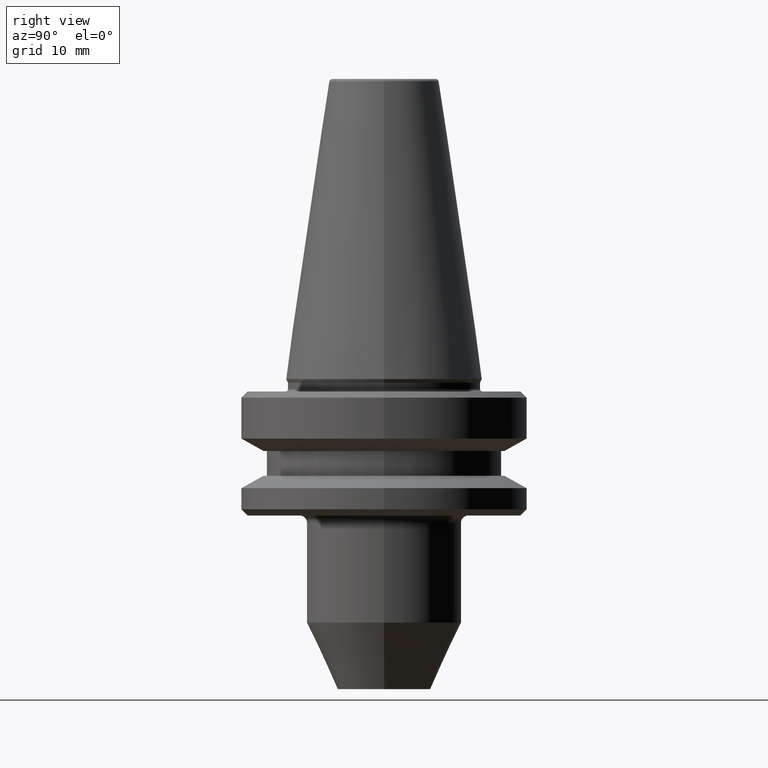
[diagram: clean part render]
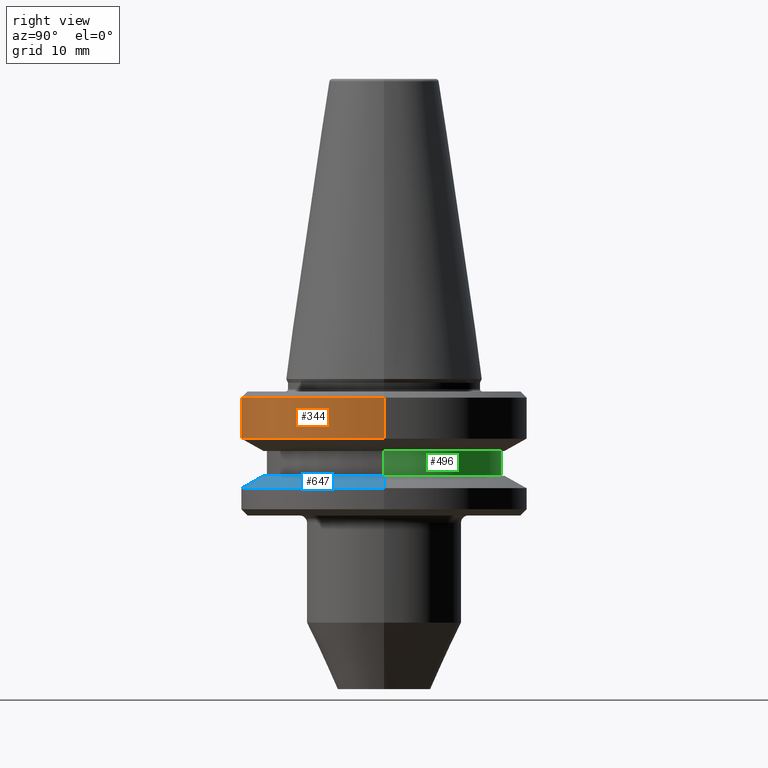
[diagram: same view with three faces highlighted in distinct colors, each labeled with its STEP entity id]
A machine part, right view with three faces highlighted in distinct colors.
Their STEP definitions:

[orange] entity #344 — the highlighted cylindrical surface (partial cylindrical patch) has radius 23 mm, axis along (-0, -0, 1).
#73 = VERTEX_POINT ( 'NONE', #218 ) ;
#78 = CYLINDRICAL_SURFACE ( 'NONE', #789, 22.99999999999990800 ) ;
#81 = CIRCLE ( 'NONE', #309, 22.99999999999990800 ) ;
#85 = DIRECTION ( 'NONE',  ( -0.0000000000000000000, -0.0000000000000000000, 1.000000000000000000 ) ) ;
#91 = CARTESIAN_POINT ( 'NONE',  ( 22.99999999999990800, 0.0000000000000000000, -9.600117335054614300 ) ) ;
#139 = EDGE_CURVE ( 'NONE', #914, #73, #325, .T. ) ;
#141 = ORIENTED_EDGE ( 'NONE', *, *, #881, .F. ) ;
#168 = CARTESIAN_POINT ( 'NONE',  ( 0.0000000000000000000, 0.0000000000000000000, -9.600117335054614300 ) ) ;
#218 = CARTESIAN_POINT ( 'NONE',  ( 22.99999999999990800, 0.0000000000000000000, -3.000000000000113700 ) ) ;
#246 = DIRECTION ( 'NONE',  ( 1.000000000000000000, 0.0000000000000000000, 0.0000000000000000000 ) ) ;
#309 = AXIS2_PLACEMENT_3D ( 'NONE', #168, #701, #246 ) ;
#320 = CARTESIAN_POINT ( 'NONE',  ( 22.99999999999990800, 0.0000000000000000000, 67.86440920015635900 ) ) ;
#325 = CIRCLE ( 'NONE', #812, 22.99999999999990800 ) ;
#344 = ADVANCED_FACE ( 'NONE', ( #921 ), #78, .T. ) ;
#382 = DIRECTION ( 'NONE',  ( -0.0000000000000000000, -0.0000000000000000000, 1.000000000000000000 ) ) ;
#389 = DIRECTION ( 'NONE',  ( 1.000000000000000000, 0.0000000000000000000, 0.0000000000000000000 ) ) ;
#394 = EDGE_LOOP ( 'NONE', ( #141, #587, #549, #408 ) ) ;
#408 = ORIENTED_EDGE ( 'NONE', *, *, #139, .F. ) ;
#459 = DIRECTION ( 'NONE',  ( -0.0000000000000000000, -0.0000000000000000000, 1.000000000000000000 ) ) ;
#549 = ORIENTED_EDGE ( 'NONE', *, *, #968, .T. ) ;
#565 = VERTEX_POINT ( 'NONE', #903 ) ;
#587 = ORIENTED_EDGE ( 'NONE', *, *, #934, .T. ) ;
#611 = LINE ( 'NONE', #320, #826 ) ;
#621 = CARTESIAN_POINT ( 'NONE',  ( -22.99999999999990800, 2.816687638038901300E-015, -3.000000000000113700 ) ) ;
#701 = DIRECTION ( 'NONE',  ( -0.0000000000000000000, -0.0000000000000000000, 1.000000000000000000 ) ) ;
#714 = VECTOR ( 'NONE', #459, 1000.000000000000000 ) ;
#737 = LINE ( 'NONE', #848, #714 ) ;
#771 = CARTESIAN_POINT ( 'NONE',  ( 0.0000000000000000000, 0.0000000000000000000, 67.86440920015635900 ) ) ;
#786 = DIRECTION ( 'NONE',  ( -0.0000000000000000000, -0.0000000000000000000, 1.000000000000000000 ) ) ;
#789 = AXIS2_PLACEMENT_3D ( 'NONE', #771, #382, #389 ) ;
#812 = AXIS2_PLACEMENT_3D ( 'NONE', #860, #85, #970 ) ;
#826 = VECTOR ( 'NONE', #786, 1000.000000000000000 ) ;
#848 = CARTESIAN_POINT ( 'NONE',  ( -22.99999999999990800, 2.816687638038901300E-015, 67.86440920015635900 ) ) ;
#860 = CARTESIAN_POINT ( 'NONE',  ( 0.0000000000000000000, 0.0000000000000000000, -3.000000000000113700 ) ) ;
#881 = EDGE_CURVE ( 'NONE', #565, #914, #737, .T. ) ;
#903 = CARTESIAN_POINT ( 'NONE',  ( -22.99999999999990800, 2.816687638038901300E-015, -9.600117335054614300 ) ) ;
#914 = VERTEX_POINT ( 'NONE', #621 ) ;
#921 = FACE_OUTER_BOUND ( 'NONE', #394, .T. ) ;
#923 = VERTEX_POINT ( 'NONE', #91 ) ;
#934 = EDGE_CURVE ( 'NONE', #565, #923, #81, .T. ) ;
#968 = EDGE_CURVE ( 'NONE', #923, #73, #611, .T. ) ;
#970 = DIRECTION ( 'NONE',  ( 1.000000000000000000, 0.0000000000000000000, 0.0000000000000000000 ) ) ;

[blue] entity #647 — the highlighted conical surface has half-angle 60 deg.
#5 = CARTESIAN_POINT ( 'NONE',  ( 19.53610161513741200, 2.604585034559224100E-015, -15.59999999999983600 ) ) ;
#7 = EDGE_CURVE ( 'NONE', #859, #751, #630, .T. ) ;
#27 = VECTOR ( 'NONE', #485, 1000.000000000000000 ) ;
#42 = EDGE_CURVE ( 'NONE', #648, #859, #604, .T. ) ;
#44 = CARTESIAN_POINT ( 'NONE',  ( -19.53610161513741200, 0.0000000000000000000, -15.59999999999983600 ) ) ;
#70 = VECTOR ( 'NONE', #449, 1000.000000000000000 ) ;
#79 = CARTESIAN_POINT ( 'NONE',  ( -22.99999999999990800, 2.816687638038901700E-015, -17.59988266494572100 ) ) ;
#94 = DIRECTION ( 'NONE',  ( -0.0000000000000000000, -0.0000000000000000000, 1.000000000000000000 ) ) ;
#118 = LINE ( 'NONE', #829, #70 ) ;
#119 = ORIENTED_EDGE ( 'NONE', *, *, #42, .T. ) ;
#170 = AXIS2_PLACEMENT_3D ( 'NONE', #548, #715, #612 ) ;
#192 = AXIS2_PLACEMENT_3D ( 'NONE', #628, #94, #926 ) ;
#211 = EDGE_CURVE ( 'NONE', #648, #852, #595, .T. ) ;
#311 = FACE_OUTER_BOUND ( 'NONE', #993, .T. ) ;
#334 = ORIENTED_EDGE ( 'NONE', *, *, #211, .F. ) ;
#449 = DIRECTION ( 'NONE',  ( 0.8660254037844372600, 1.060575238724905200E-016, -0.5000000000000024400 ) ) ;
#469 = ORIENTED_EDGE ( 'NONE', *, *, #7, .T. ) ;
#482 = DIRECTION ( 'NONE',  ( 0.0000000000000000000, 0.0000000000000000000, -1.000000000000000000 ) ) ;
#485 = DIRECTION ( 'NONE',  ( -0.8660254037844372600, 0.0000000000000000000, -0.5000000000000024400 ) ) ;
#548 = CARTESIAN_POINT ( 'NONE',  ( 0.0000000000000000000, 0.0000000000000000000, -15.59999999999983600 ) ) ;
#568 = CARTESIAN_POINT ( 'NONE',  ( -22.99999999999990800, 0.0000000000000000000, -17.59988266494572100 ) ) ;
#595 = CIRCLE ( 'NONE', #170, 19.53610161513741200 ) ;
#604 = LINE ( 'NONE', #568, #27 ) ;
#612 = DIRECTION ( 'NONE',  ( 1.000000000000000000, 0.0000000000000000000, 0.0000000000000000000 ) ) ;
#628 = CARTESIAN_POINT ( 'NONE',  ( 0.0000000000000000000, 0.0000000000000000000, -17.59988266494572100 ) ) ;
#630 = CIRCLE ( 'NONE', #192, 22.99999999999990800 ) ;
#642 = ORIENTED_EDGE ( 'NONE', *, *, #667, .F. ) ;
#643 = CARTESIAN_POINT ( 'NONE',  ( 0.0000000000000000000, 0.0000000000000000000, -17.59988266494572100 ) ) ;
#647 = ADVANCED_FACE ( 'NONE', ( #311 ), #888, .T. ) ;
#648 = VERTEX_POINT ( 'NONE', #44 ) ;
#667 = EDGE_CURVE ( 'NONE', #852, #751, #118, .T. ) ;
#715 = DIRECTION ( 'NONE',  ( -0.0000000000000000000, -0.0000000000000000000, 1.000000000000000000 ) ) ;
#751 = VERTEX_POINT ( 'NONE', #932 ) ;
#822 = AXIS2_PLACEMENT_3D ( 'NONE', #643, #482, #957 ) ;
#829 = CARTESIAN_POINT ( 'NONE',  ( 22.99999999999990800, 2.816687638038901300E-015, -17.59988266494572100 ) ) ;
#852 = VERTEX_POINT ( 'NONE', #5 ) ;
#859 = VERTEX_POINT ( 'NONE', #79 ) ;
#888 = CONICAL_SURFACE ( 'NONE', #822, 22.99999999999990800, 1.047197551196595000 ) ;
#926 = DIRECTION ( 'NONE',  ( 1.000000000000000000, 0.0000000000000000000, 0.0000000000000000000 ) ) ;
#932 = CARTESIAN_POINT ( 'NONE',  ( 22.99999999999990800, 0.0000000000000000000, -17.59988266494572100 ) ) ;
#957 = DIRECTION ( 'NONE',  ( -1.000000000000000000, 0.0000000000000000000, 0.0000000000000000000 ) ) ;
#993 = EDGE_LOOP ( 'NONE', ( #642, #334, #119, #469 ) ) ;

[green] entity #496 — the highlighted cylindrical surface (partial cylindrical patch) has radius 19 mm, axis along (-0, -0, 1).
#30 = CIRCLE ( 'NONE', #151, 19.00000000000012800 ) ;
#43 = DIRECTION ( 'NONE',  ( 1.000000000000000000, 0.0000000000000000000, 0.0000000000000000000 ) ) ;
#61 = VERTEX_POINT ( 'NONE', #215 ) ;
#65 = CARTESIAN_POINT ( 'NONE',  ( 0.0000000000000000000, 0.0000000000000000000, -11.59999999999938900 ) ) ;
#74 = ORIENTED_EDGE ( 'NONE', *, *, #261, .F. ) ;
#75 = DIRECTION ( 'NONE',  ( -0.0000000000000000000, -0.0000000000000000000, 1.000000000000000000 ) ) ;
#87 = CARTESIAN_POINT ( 'NONE',  ( -19.00000000000012800, 2.326828918379986700E-015, -11.59999999999938900 ) ) ;
#95 = ORIENTED_EDGE ( 'NONE', *, *, #110, .F. ) ;
#110 = EDGE_CURVE ( 'NONE', #716, #251, #347, .T. ) ;
#151 = AXIS2_PLACEMENT_3D ( 'NONE', #943, #597, #43 ) ;
#182 = CYLINDRICAL_SURFACE ( 'NONE', #455, 19.00000000000012800 ) ;
#215 = CARTESIAN_POINT ( 'NONE',  ( 19.00000000000012800, 0.0000000000000000000, -15.59999999999983600 ) ) ;
#227 = DIRECTION ( 'NONE',  ( -0.0000000000000000000, -0.0000000000000000000, 1.000000000000000000 ) ) ;
#251 = VERTEX_POINT ( 'NONE', #87 ) ;
#261 = EDGE_CURVE ( 'NONE', #61, #716, #758, .T. ) ;
#298 = VECTOR ( 'NONE', #774, 1000.000000000000000 ) ;
#307 = EDGE_LOOP ( 'NONE', ( #965, #711, #95, #74 ) ) ;
#347 = CIRCLE ( 'NONE', #649, 19.00000000000012800 ) ;
#359 = CARTESIAN_POINT ( 'NONE',  ( 19.00000000000012800, 0.0000000000000000000, -11.59999999999938900 ) ) ;
#439 = EDGE_CURVE ( 'NONE', #61, #939, #30, .T. ) ;
#444 = CARTESIAN_POINT ( 'NONE',  ( 0.0000000000000000000, 0.0000000000000000000, 67.86440920015635900 ) ) ;
#455 = AXIS2_PLACEMENT_3D ( 'NONE', #444, #889, #464 ) ;
#464 = DIRECTION ( 'NONE',  ( 1.000000000000000000, 0.0000000000000000000, 0.0000000000000000000 ) ) ;
#496 = ADVANCED_FACE ( 'NONE', ( #559 ), #182, .T. ) ;
#544 = CARTESIAN_POINT ( 'NONE',  ( -19.00000000000012800, 2.326828918379986700E-015, -15.59999999999983600 ) ) ;
#547 = VECTOR ( 'NONE', #227, 1000.000000000000000 ) ;
#559 = FACE_OUTER_BOUND ( 'NONE', #307, .T. ) ;
#597 = DIRECTION ( 'NONE',  ( -0.0000000000000000000, -0.0000000000000000000, 1.000000000000000000 ) ) ;
#649 = AXIS2_PLACEMENT_3D ( 'NONE', #65, #75, #742 ) ;
#711 = ORIENTED_EDGE ( 'NONE', *, *, #901, .T. ) ;
#716 = VERTEX_POINT ( 'NONE', #359 ) ;
#742 = DIRECTION ( 'NONE',  ( 1.000000000000000000, 0.0000000000000000000, 0.0000000000000000000 ) ) ;
#758 = LINE ( 'NONE', #980, #547 ) ;
#774 = DIRECTION ( 'NONE',  ( -0.0000000000000000000, -0.0000000000000000000, 1.000000000000000000 ) ) ;
#857 = CARTESIAN_POINT ( 'NONE',  ( -19.00000000000012800, 2.326828918379986700E-015, 67.86440920015635900 ) ) ;
#874 = LINE ( 'NONE', #857, #298 ) ;
#889 = DIRECTION ( 'NONE',  ( -0.0000000000000000000, -0.0000000000000000000, 1.000000000000000000 ) ) ;
#901 = EDGE_CURVE ( 'NONE', #939, #251, #874, .T. ) ;
#939 = VERTEX_POINT ( 'NONE', #544 ) ;
#943 = CARTESIAN_POINT ( 'NONE',  ( 0.0000000000000000000, 0.0000000000000000000, -15.59999999999983600 ) ) ;
#965 = ORIENTED_EDGE ( 'NONE', *, *, #439, .T. ) ;
#980 = CARTESIAN_POINT ( 'NONE',  ( 19.00000000000012800, 0.0000000000000000000, 67.86440920015635900 ) ) ;